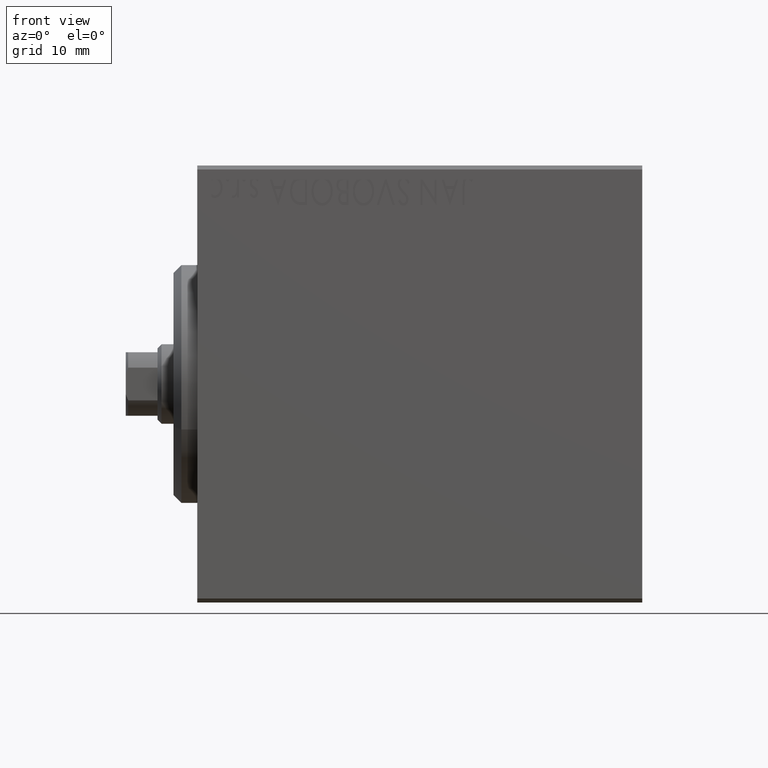
[diagram: clean part render]
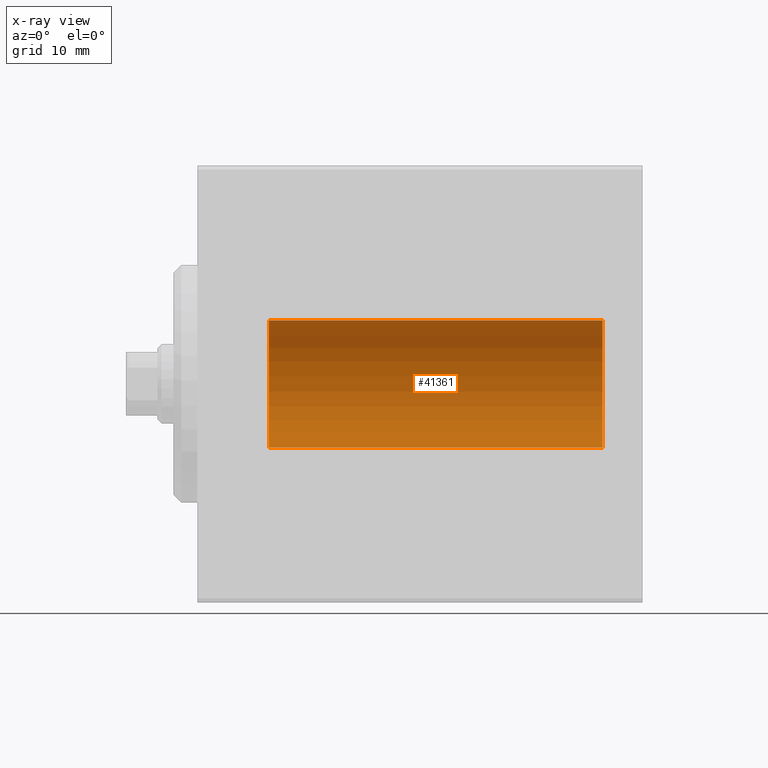
[diagram: x-ray — body ghosted, one internal face saturated and labeled with its STEP entity id]
A machine part, front view, then the same camera in x-ray: the body is ghosted and one INTERNAL B-rep face — a face not visible from any outside direction — is saturated and labeled: STEP entity #41361.
In plain terms, the highlighted cylindrical surface (partial cylindrical patch) has radius 8 mm, axis along (-1, -0, -0).
Its self-contained STEP definition (entity closure, byte-faithful):
#405 = EDGE_CURVE ( 'NONE', #36347, #9883, #18159, .T. ) ;
#1520 = LINE ( 'NONE', #15037, #22710 ) ;
#4453 = CARTESIAN_POINT ( 'NONE',  ( 51.00000000000000000, 0.000000000000000000, 0.000000000000000000 ) ) ;
#4655 = EDGE_CURVE ( 'NONE', #9883, #11962, #9669, .T. ) ;
#6984 = CARTESIAN_POINT ( 'NONE',  ( 51.00000000000000000, 9.797174393178823685E-16, -7.999999999999998224 ) ) ;
#7110 = CARTESIAN_POINT ( 'NONE',  ( 51.00000000000000000, 0.000000000000000000, 7.999999999999998224 ) ) ;
#7344 = CARTESIAN_POINT ( 'NONE',  ( 9.000000000000001776, 9.797174393178823685E-16, -7.999999999999998224 ) ) ;
#9669 = LINE ( 'NONE', #6984, #32358 ) ;
#9883 = VERTEX_POINT ( 'NONE', #14370 ) ;
#11962 = VERTEX_POINT ( 'NONE', #7344 ) ;
#12038 = CARTESIAN_POINT ( 'NONE',  ( 51.00000000000000000, 0.000000000000000000, 0.000000000000000000 ) ) ;
#12126 = EDGE_LOOP ( 'NONE', ( #31920, #30042, #18007, #20052 ) ) ;
#12150 = DIRECTION ( 'NONE',  ( -1.000000000000000000, -0.000000000000000000, -0.000000000000000000 ) ) ;
#12344 = AXIS2_PLACEMENT_3D ( 'NONE', #20879, #17771, #31324 ) ;
#14370 = CARTESIAN_POINT ( 'NONE',  ( 51.00000000000000000, 9.797174393178823685E-16, -7.999999999999998224 ) ) ;
#15037 = CARTESIAN_POINT ( 'NONE',  ( 51.00000000000000000, 0.000000000000000000, 7.999999999999998224 ) ) ;
#15079 = DIRECTION ( 'NONE',  ( -1.000000000000000000, 0.000000000000000000, 0.000000000000000000 ) ) ;
#15872 = AXIS2_PLACEMENT_3D ( 'NONE', #12038, #42034, #39137 ) ;
#16541 = DIRECTION ( 'NONE',  ( -1.000000000000000000, -0.000000000000000000, -0.000000000000000000 ) ) ;
#17771 = DIRECTION ( 'NONE',  ( -1.000000000000000000, 0.000000000000000000, 0.000000000000000000 ) ) ;
#18007 = ORIENTED_EDGE ( 'NONE', *, *, #27247, .T. ) ;
#18159 = CIRCLE ( 'NONE', #20288, 7.999999999999998224 ) ;
#20052 = ORIENTED_EDGE ( 'NONE', *, *, #43193, .T. ) ;
#20288 = AXIS2_PLACEMENT_3D ( 'NONE', #4453, #15079, #42621 ) ;
#20879 = CARTESIAN_POINT ( 'NONE',  ( 9.000000000000001776, 0.000000000000000000, 0.000000000000000000 ) ) ;
#22710 = VECTOR ( 'NONE', #12150, 1000.000000000000000 ) ;
#24391 = CARTESIAN_POINT ( 'NONE',  ( 9.000000000000001776, 0.000000000000000000, 7.999999999999998224 ) ) ;
#26464 = VERTEX_POINT ( 'NONE', #24391 ) ;
#27247 = EDGE_CURVE ( 'NONE', #36347, #26464, #1520, .T. ) ;
#30042 = ORIENTED_EDGE ( 'NONE', *, *, #405, .F. ) ;
#31324 = DIRECTION ( 'NONE',  ( 0.000000000000000000, 0.000000000000000000, 1.000000000000000000 ) ) ;
#31503 = CIRCLE ( 'NONE', #12344, 7.999999999999998224 ) ;
#31920 = ORIENTED_EDGE ( 'NONE', *, *, #4655, .F. ) ;
#32358 = VECTOR ( 'NONE', #16541, 1000.000000000000000 ) ;
#33516 = FACE_OUTER_BOUND ( 'NONE', #12126, .T. ) ;
#36347 = VERTEX_POINT ( 'NONE', #7110 ) ;
#39137 = DIRECTION ( 'NONE',  ( 0.000000000000000000, 0.000000000000000000, 1.000000000000000000 ) ) ;
#41361 = ADVANCED_FACE ( 'NONE', ( #33516 ), #42461, .F. ) ;
#42034 = DIRECTION ( 'NONE',  ( -1.000000000000000000, -0.000000000000000000, -0.000000000000000000 ) ) ;
#42461 = CYLINDRICAL_SURFACE ( 'NONE', #15872, 7.999999999999998224 ) ;
#42621 = DIRECTION ( 'NONE',  ( 0.000000000000000000, 0.000000000000000000, 1.000000000000000000 ) ) ;
#43193 = EDGE_CURVE ( 'NONE', #26464, #11962, #31503, .T. ) ;